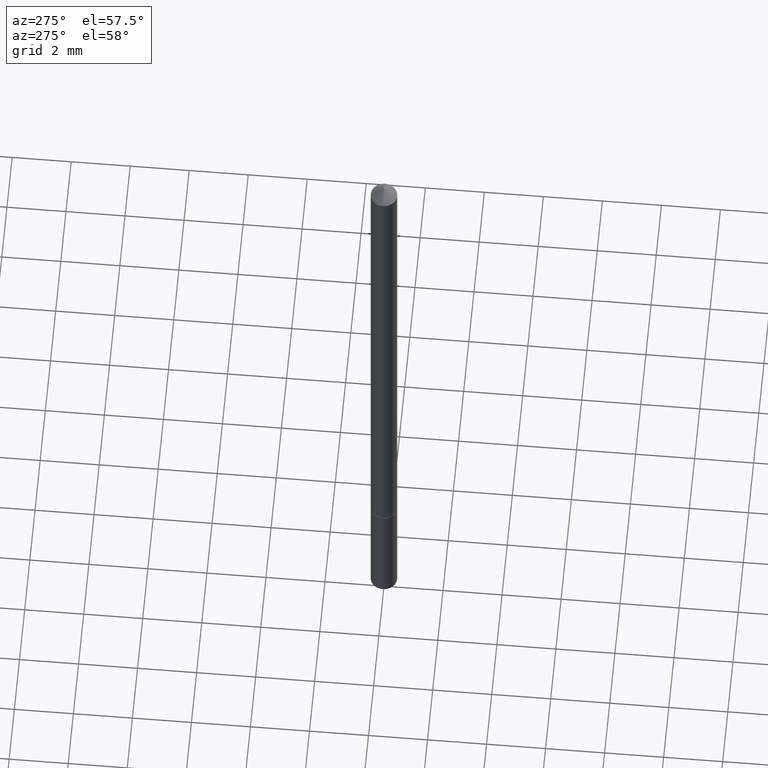
[diagram: clean part render]
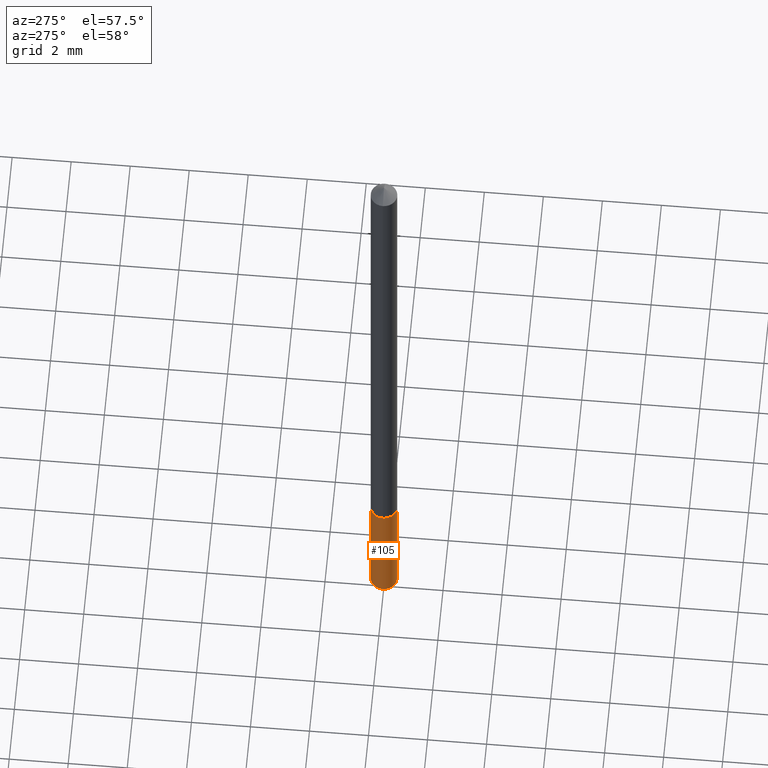
[diagram: same view with one face highlighted and labeled with its STEP entity id]
A machine part, auxiliary view. The second image highlights one B-rep face of the part: STEP entity #105.
In plain terms, the highlighted cylindrical surface (edge-blend (fillet) strip) has radius 0.4496 mm, axis along (-0, 0, 1).
Its self-contained STEP definition (entity closure, byte-faithful):
#8 = CYLINDRICAL_SURFACE ( 'NONE', #321, 0.01770000000000000046 ) ;
#12 = CARTESIAN_POINT ( 'NONE',  ( 2.393436258665223768E-29, -3.417167035647336902E-15, -0.9787192114368419293 ) ) ;
#23 = EDGE_CURVE ( 'NONE', #329, #187, #345, .T. ) ;
#38 = DIRECTION ( 'NONE',  ( -6.982962677686265133E-15, -1.000000000000000000, 0.000000000000000000 ) ) ;
#39 = VERTEX_POINT ( 'NONE', #304 ) ;
#43 = VERTEX_POINT ( 'NONE', #300 ) ;
#54 = DIRECTION ( 'NONE',  ( -2.445519838104881031E-29, 3.491408258229514886E-15, 1.000000000000000000 ) ) ;
#55 = CIRCLE ( 'NONE', #63, 0.01770000000000000046 ) ;
#63 = AXIS2_PLACEMENT_3D ( 'NONE', #12, #341, #201 ) ;
#69 = EDGE_CURVE ( 'NONE', #39, #329, #55, .T. ) ;
#77 = CARTESIAN_POINT ( 'NONE',  ( -1.235984393950272671E-16, -0.01770000000000280377, -0.8031999999999999140 ) ) ;
#86 = FACE_OUTER_BOUND ( 'NONE', #269, .T. ) ;
#93 = ORIENTED_EDGE ( 'NONE', *, *, #23, .T. ) ;
#101 = CIRCLE ( 'NONE', #144, 0.01770000000000000046 ) ;
#105 = ADVANCED_FACE ( 'NONE', ( #86 ), #8, .T. ) ;
#107 = CARTESIAN_POINT ( 'NONE',  ( 1.257660642295573590E-16, 0.01769999999999719714, -0.8031999999999999140 ) ) ;
#113 = ORIENTED_EDGE ( 'NONE', *, *, #69, .T. ) ;
#132 = LINE ( 'NONE', #107, #143 ) ;
#143 = VECTOR ( 'NONE', #281, 39.37007874015748143 ) ;
#144 = AXIS2_PLACEMENT_3D ( 'NONE', #265, #184, #357 ) ;
#149 = EDGE_CURVE ( 'NONE', #39, #43, #132, .T. ) ;
#175 = ORIENTED_EDGE ( 'NONE', *, *, #204, .F. ) ;
#184 = DIRECTION ( 'NONE',  ( -2.445519838104881031E-29, 3.491408258229514886E-15, 1.000000000000000000 ) ) ;
#187 = VERTEX_POINT ( 'NONE', #77 ) ;
#201 = DIRECTION ( 'NONE',  ( -6.982962677686265133E-15, -1.000000000000000000, 0.000000000000000000 ) ) ;
#204 = EDGE_CURVE ( 'NONE', #43, #187, #101, .T. ) ;
#233 = DIRECTION ( 'NONE',  ( -2.445519838104881312E-29, 3.491408258229515280E-15, 1.000000000000000000 ) ) ;
#234 = CARTESIAN_POINT ( 'NONE',  ( 1.964200545127901750E-29, -2.804357811358814562E-15, -0.8031999999999999140 ) ) ;
#265 = CARTESIAN_POINT ( 'NONE',  ( 1.964200545127901750E-29, -2.804357811358814562E-15, -0.8031999999999999140 ) ) ;
#269 = EDGE_LOOP ( 'NONE', ( #323, #113, #93, #175 ) ) ;
#281 = DIRECTION ( 'NONE',  ( -2.445519838104881312E-29, 3.491408258229515280E-15, 1.000000000000000000 ) ) ;
#290 = CARTESIAN_POINT ( 'NONE',  ( -1.235984393950229777E-16, -0.01770000000000341786, -0.9787192114368419293 ) ) ;
#300 = CARTESIAN_POINT ( 'NONE',  ( 1.257660642295616978E-16, 0.01769999999999719714, -0.8031999999999999140 ) ) ;
#304 = CARTESIAN_POINT ( 'NONE',  ( 1.257660642295616485E-16, 0.01769999999999658305, -0.9787192114368419293 ) ) ;
#312 = CARTESIAN_POINT ( 'NONE',  ( -1.235984393950272671E-16, -0.01770000000000280377, -0.8031999999999999140 ) ) ;
#321 = AXIS2_PLACEMENT_3D ( 'NONE', #234, #54, #38 ) ;
#323 = ORIENTED_EDGE ( 'NONE', *, *, #149, .F. ) ;
#326 = VECTOR ( 'NONE', #233, 39.37007874015748143 ) ;
#329 = VERTEX_POINT ( 'NONE', #290 ) ;
#341 = DIRECTION ( 'NONE',  ( -2.445519838104881031E-29, 3.491408258229514886E-15, 1.000000000000000000 ) ) ;
#345 = LINE ( 'NONE', #312, #326 ) ;
#357 = DIRECTION ( 'NONE',  ( -6.982962677686265133E-15, -1.000000000000000000, 0.000000000000000000 ) ) ;